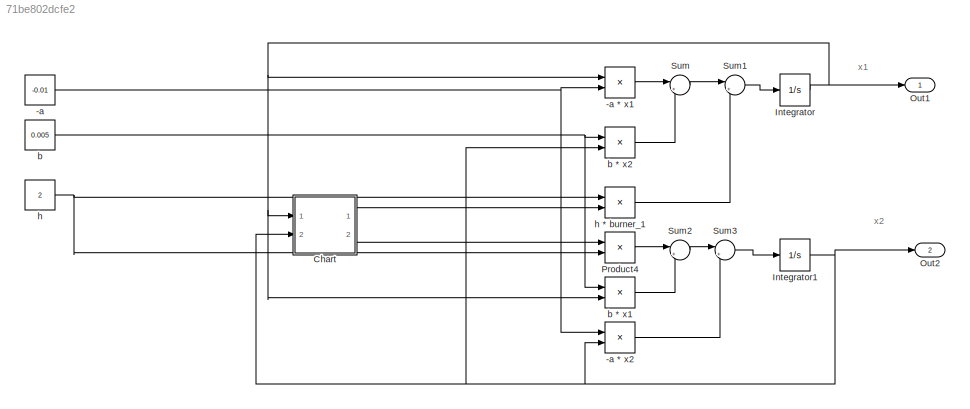
MODEL slx_71be802dcfe2
KIND model
CONFIG AbsTol = auto
CONFIG EnableMultiTasking = off
CONFIG FixedStep = timeStepMax
CONFIG MaxStep = timeStepMax
CONFIG MinStep = auto
CONFIG RelTol = 1e-3
CONFIG SampleTimeConstraint = Unconstrained
CONFIG SolverName = FixedStepAuto
CONFIG StartTime = 0.0
CONFIG StopTime = timeFinal
WORKSPACE source: mxarray member
WORKSPACE initX1 = 0
WORKSPACE initX2 = 50
BLOCK [Constant] -a
  Value = -0.01
BLOCK [Product] -a * x1
  Ports = [2, 1]
BLOCK [Product] -a * x2
  Ports = [2, 1]
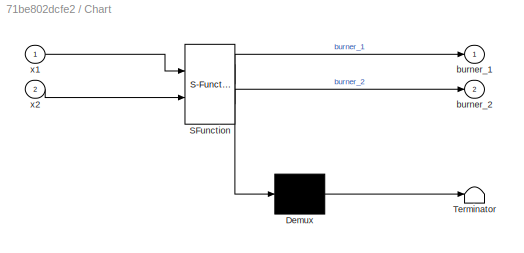
BLOCK [SubSystem] Chart
  ErrorFcn = Stateflow.Translate.translate
  PermitHierarchicalResolution = ExplicitOnly
  Ports = [2, 2]
  RequestExecContextInheritance = off
  SFBlockType = Chart
  TreatAsAtomicUnit = on
BLOCK [Demux] Chart/ Demux 
  Outputs = 1
  Ports = [1, 1]
BLOCK [S-Function] Chart/ SFunction 
  EnableBusSupport = on
  FunctionName = sf_sfun
  PortCounts = [2 3]
  Ports = [2, 3]
  SFcnIsStateOwnerBlock = off
  SFunctionDeploymentMode = off
  Tag = Stateflow S-Function 3
BLOCK [Terminator] Chart/ Terminator 
BLOCK [Outport] Chart/burner_1
  VectorParamsAs1DForOutWhenUnconnected = off
BLOCK [Outport] Chart/burner_2
  Port = 2
  VectorParamsAs1DForOutWhenUnconnected = off
BLOCK [Inport] Chart/x1
BLOCK [Inport] Chart/x2
  Port = 2
BLOCK [Integrator] Integrator
  InitialCondition = a_init
  Ports = [1, 1]
BLOCK [Integrator] Integrator1
  InitialCondition = b_init
  Ports = [1, 1]
BLOCK [Outport] Out1
  VectorParamsAs1DForOutWhenUnconnected = off
BLOCK [Outport] Out2
  Port = 2
  VectorParamsAs1DForOutWhenUnconnected = off
BLOCK [Product] Product4
  Ports = [2, 1]
BLOCK [Sum] Sum
  Inputs = |++
  Ports = [2, 1]
BLOCK [Sum] Sum1
  Inputs = |++
  Ports = [2, 1]
BLOCK [Sum] Sum2
  Inputs = |++
  Ports = [2, 1]
BLOCK [Sum] Sum3
  Inputs = |++
  Ports = [2, 1]
BLOCK [Constant] b
  Value = 0.005
BLOCK [Product] b * x1
  Ports = [2, 1]
BLOCK [Product] b * x2
  Ports = [2, 1]
BLOCK [Constant] h
  Value = 2
BLOCK [Product] h * burner_1
  Ports = [2, 1]
ANNOTATION (root): x1
ANNOTATION (root): x2
LINE -a * x1:1 -> Sum:1
LINE -a * x2:1 -> Sum3:2
NET -a:1 -> -a * x1:2, -a * x2:1
LINE Chart:1 -> h * burner_1:2
LINE Chart:2 -> Product4:1
NET Integrator1:1 -> -a * x2:2, Chart:2, Out2:1, b * x2:2
NET Integrator:1 -> -a * x1:1, Chart:1, Out1:1, b * x1:2
LINE Product4:1 -> Sum2:1
LINE Sum1:1 -> Integrator:1
LINE Sum2:1 -> Sum3:1
LINE Sum3:1 -> Integrator1:1
LINE Sum:1 -> Sum1:1
LINE b * x1:1 -> Sum2:2
LINE b * x2:1 -> Sum:2
NET b:1 -> b * x1:1, b * x2:1
LINE h * burner_1:1 -> Sum1:2
NET h:1 -> Product4:2, h * burner_1:1
note: NET lines group one-source signal fan-out (src -> all destinations, sorted); 1:1 wires keep LINE
CHART Chart states=3 transitions=7
  STATE_LABEL 'l1\nburner_1 = 1;\nburner_2 = 0;'
  STATE_LABEL 'l0\nburner_1 = 0;\nburner_2 = 0;'
  STATE_LABEL 'l2\nburner_1 = 0;\nburner_2 = 1;'
CHART  states=0 transitions=0
